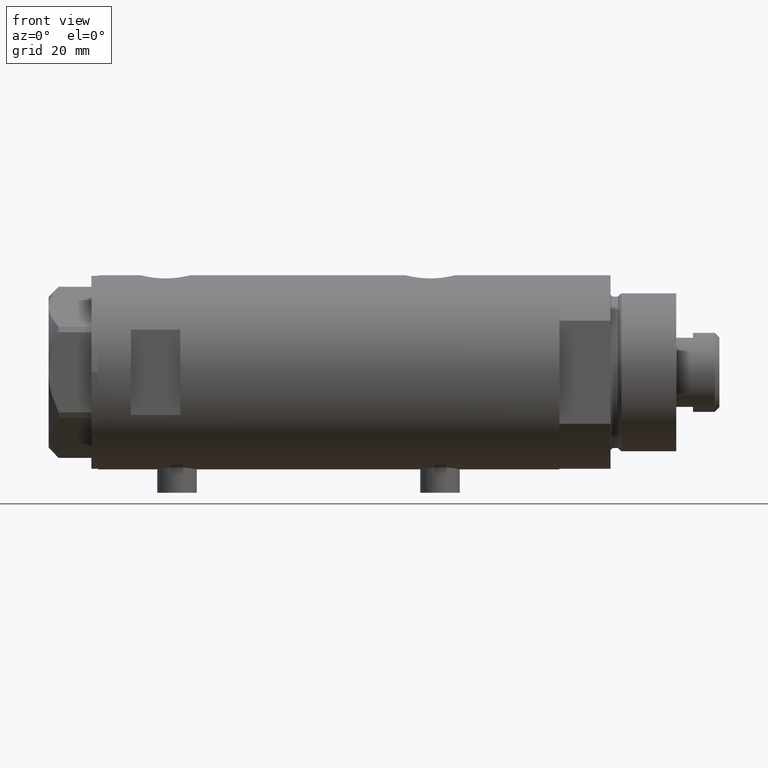
[diagram: clean part render]
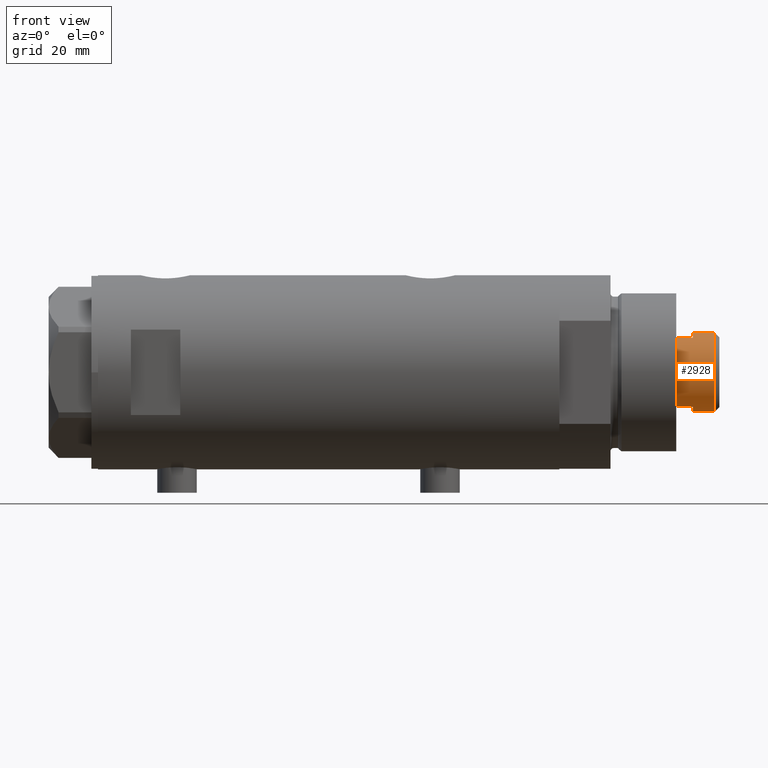
[diagram: same view with one face highlighted and labeled with its STEP entity id]
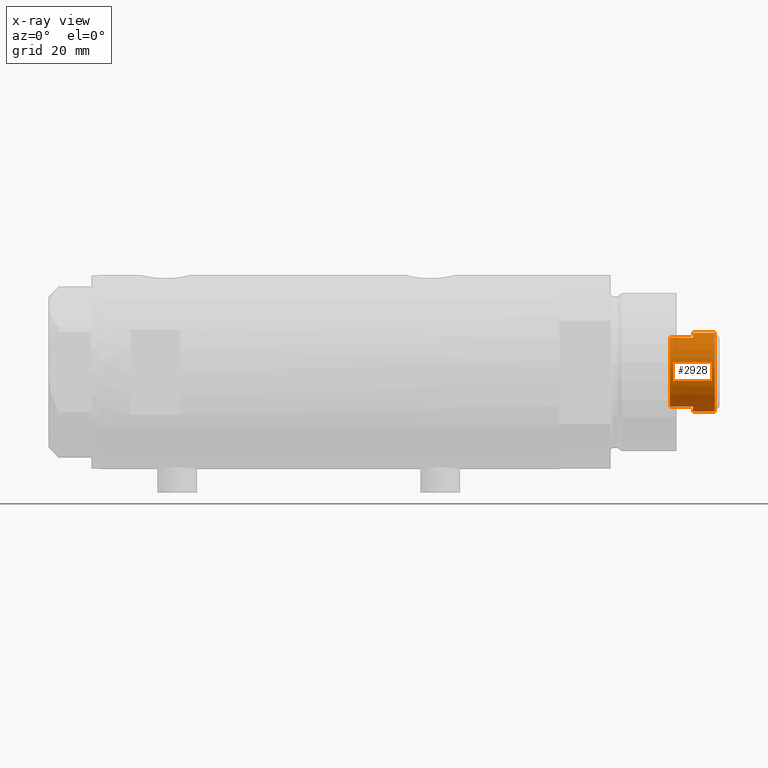
[diagram: x-ray of the same camera — body ghosted, the highlighted face saturated]
A machine part, front view. The second image highlights one B-rep face of the part: STEP entity #2928.
The next image is the same camera in x-ray: the body ghosted, the highlighted face saturated — about 0% of this face is hidden behind the body in this view.
In plain terms, the highlighted cylindrical surface (partial cylindrical patch) has radius 12 mm, axis along (-1, -0, 0).
Its self-contained STEP definition (entity closure, byte-faithful):
#22 = ORIENTED_EDGE ( 'NONE', *, *, #4503, .T. ) ;
#34 = DIRECTION ( 'NONE',  ( 0.000000000000000000, 0.000000000000000000, 1.000000000000000000 ) ) ;
#62 = CARTESIAN_POINT ( 'NONE',  ( 12.00000000000000000, 1.469576158976823947E-15, 157.2999999999999829 ) ) ;
#86 = LINE ( 'NONE', #62, #3246 ) ;
#106 = CARTESIAN_POINT ( 'NONE',  ( 0.000000000000000000, 0.000000000000000000, 150.2999999999999829 ) ) ;
#164 = VERTEX_POINT ( 'NONE', #3514 ) ;
#198 = VERTEX_POINT ( 'NONE', #626 ) ;
#272 = VERTEX_POINT ( 'NONE', #4064 ) ;
#297 = ORIENTED_EDGE ( 'NONE', *, *, #633, .F. ) ;
#327 = DIRECTION ( 'NONE',  ( 0.000000000000000000, 0.000000000000000000, 1.000000000000000000 ) ) ;
#454 = ORIENTED_EDGE ( 'NONE', *, *, #1647, .T. ) ;
#492 = DIRECTION ( 'NONE',  ( 1.000000000000000000, 0.000000000000000000, 0.000000000000000000 ) ) ;
#516 = CARTESIAN_POINT ( 'NONE',  ( -10.48861764008966091, -5.830000000000003624, 157.2999999999999829 ) ) ;
#527 = DIRECTION ( 'NONE',  ( -0.000000000000000000, -0.000000000000000000, -1.000000000000000000 ) ) ;
#575 = DIRECTION ( 'NONE',  ( 0.000000000000000000, 0.000000000000000000, 1.000000000000000000 ) ) ;
#626 = CARTESIAN_POINT ( 'NONE',  ( 12.00000000000000355, 1.469576158976824342E-15, 157.2999999999999829 ) ) ;
#633 = EDGE_CURVE ( 'NONE', #1867, #2046, #2469, .T. ) ;
#722 = ORIENTED_EDGE ( 'NONE', *, *, #2655, .T. ) ;
#771 = CIRCLE ( 'NONE', #1013, 12.00000000000000178 ) ;
#850 = DIRECTION ( 'NONE',  ( -0.000000000000000000, -0.000000000000000000, -1.000000000000000000 ) ) ;
#966 = CIRCLE ( 'NONE', #2669, 12.00000000000000000 ) ;
#993 = EDGE_CURVE ( 'NONE', #1867, #198, #771, .T. ) ;
#1013 = AXIS2_PLACEMENT_3D ( 'NONE', #1741, #575, #3923 ) ;
#1026 = ORIENTED_EDGE ( 'NONE', *, *, #2545, .F. ) ;
#1203 = CARTESIAN_POINT ( 'NONE',  ( -12.00000000000000000, 0.000000000000000000, 163.8999999999999773 ) ) ;
#1239 = EDGE_CURVE ( 'NONE', #164, #3880, #2330, .T. ) ;
#1263 = VECTOR ( 'NONE', #4392, 1000.000000000000000 ) ;
#1363 = CARTESIAN_POINT ( 'NONE',  ( -12.00000000000000000, 0.000000000000000000, 157.2999999999999829 ) ) ;
#1604 = CYLINDRICAL_SURFACE ( 'NONE', #4316, 12.00000000000000000 ) ;
#1647 = EDGE_CURVE ( 'NONE', #4524, #272, #2380, .T. ) ;
#1741 = CARTESIAN_POINT ( 'NONE',  ( 0.000000000000000000, 0.000000000000000000, 157.2999999999999829 ) ) ;
#1867 = VERTEX_POINT ( 'NONE', #2724 ) ;
#1879 = DIRECTION ( 'NONE',  ( -0.000000000000000000, -0.000000000000000000, -1.000000000000000000 ) ) ;
#2005 = CARTESIAN_POINT ( 'NONE',  ( 0.000000000000000000, 0.000000000000000000, 163.8999999999999773 ) ) ;
#2023 = FACE_OUTER_BOUND ( 'NONE', #4195, .T. ) ;
#2046 = VERTEX_POINT ( 'NONE', #2435 ) ;
#2095 = VECTOR ( 'NONE', #4302, 1000.000000000000000 ) ;
#2130 = DIRECTION ( 'NONE',  ( 1.000000000000000000, 0.000000000000000000, 0.000000000000000000 ) ) ;
#2330 = CIRCLE ( 'NONE', #3489, 12.00000000000000000 ) ;
#2380 = LINE ( 'NONE', #3851, #3277 ) ;
#2427 = ORIENTED_EDGE ( 'NONE', *, *, #3638, .T. ) ;
#2435 = CARTESIAN_POINT ( 'NONE',  ( 10.48861764008966269, -5.830000000000046256, 150.2999999999999829 ) ) ;
#2469 = LINE ( 'NONE', #3580, #2095 ) ;
#2545 = EDGE_CURVE ( 'NONE', #164, #198, #86, .T. ) ;
#2603 = CARTESIAN_POINT ( 'NONE',  ( -12.00000000000000355, 0.000000000000000000, 157.2999999999999829 ) ) ;
#2655 = EDGE_CURVE ( 'NONE', #3739, #4524, #4077, .T. ) ;
#2669 = AXIS2_PLACEMENT_3D ( 'NONE', #106, #34, #3720 ) ;
#2724 = CARTESIAN_POINT ( 'NONE',  ( 10.48861764008966446, -5.829999999999997407, 157.2999999999999829 ) ) ;
#2928 = ADVANCED_FACE ( 'NONE', ( #2023 ), #1604, .T. ) ;
#2931 = CARTESIAN_POINT ( 'NONE',  ( 0.000000000000000000, 0.000000000000000000, 157.2999999999999829 ) ) ;
#3246 = VECTOR ( 'NONE', #1879, 1000.000000000000000 ) ;
#3277 = VECTOR ( 'NONE', #527, 1000.000000000000000 ) ;
#3323 = AXIS2_PLACEMENT_3D ( 'NONE', #2931, #327, #2130 ) ;
#3462 = ORIENTED_EDGE ( 'NONE', *, *, #993, .T. ) ;
#3489 = AXIS2_PLACEMENT_3D ( 'NONE', #2005, #3815, #492 ) ;
#3514 = CARTESIAN_POINT ( 'NONE',  ( 12.00000000000000000, 1.469576158976823947E-15, 163.8999999999999773 ) ) ;
#3580 = CARTESIAN_POINT ( 'NONE',  ( 10.48861764008966446, -5.829999999999997407, 157.2999999999999829 ) ) ;
#3638 = EDGE_CURVE ( 'NONE', #3880, #3739, #4323, .T. ) ;
#3720 = DIRECTION ( 'NONE',  ( 1.000000000000000000, 0.000000000000000000, 0.000000000000000000 ) ) ;
#3739 = VERTEX_POINT ( 'NONE', #2603 ) ;
#3754 = ORIENTED_EDGE ( 'NONE', *, *, #1239, .T. ) ;
#3815 = DIRECTION ( 'NONE',  ( 0.000000000000000000, 0.000000000000000000, -1.000000000000000000 ) ) ;
#3851 = CARTESIAN_POINT ( 'NONE',  ( -10.48861764008966091, -5.830000000000000959, 157.2999999999999829 ) ) ;
#3880 = VERTEX_POINT ( 'NONE', #1203 ) ;
#3907 = DIRECTION ( 'NONE',  ( -1.000000000000000000, 0.000000000000000000, 0.000000000000000000 ) ) ;
#3923 = DIRECTION ( 'NONE',  ( 1.000000000000000000, 0.000000000000000000, 0.000000000000000000 ) ) ;
#4064 = CARTESIAN_POINT ( 'NONE',  ( -10.48861764008966091, -5.830000000000050697, 150.2999999999999829 ) ) ;
#4077 = CIRCLE ( 'NONE', #3323, 12.00000000000000178 ) ;
#4195 = EDGE_LOOP ( 'NONE', ( #1026, #3754, #2427, #722, #454, #22, #297, #3462 ) ) ;
#4272 = CARTESIAN_POINT ( 'NONE',  ( 0.000000000000000000, 0.000000000000000000, 157.2999999999999829 ) ) ;
#4302 = DIRECTION ( 'NONE',  ( -0.000000000000000000, -0.000000000000000000, -1.000000000000000000 ) ) ;
#4316 = AXIS2_PLACEMENT_3D ( 'NONE', #4272, #850, #3907 ) ;
#4323 = LINE ( 'NONE', #1363, #1263 ) ;
#4392 = DIRECTION ( 'NONE',  ( -0.000000000000000000, -0.000000000000000000, -1.000000000000000000 ) ) ;
#4503 = EDGE_CURVE ( 'NONE', #272, #2046, #966, .T. ) ;
#4524 = VERTEX_POINT ( 'NONE', #516 ) ;